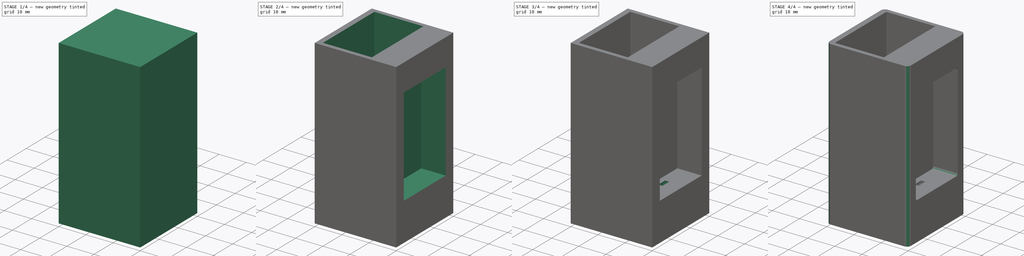
[diagram: build sequence overview — one tinted view per stage of 4, left to right]
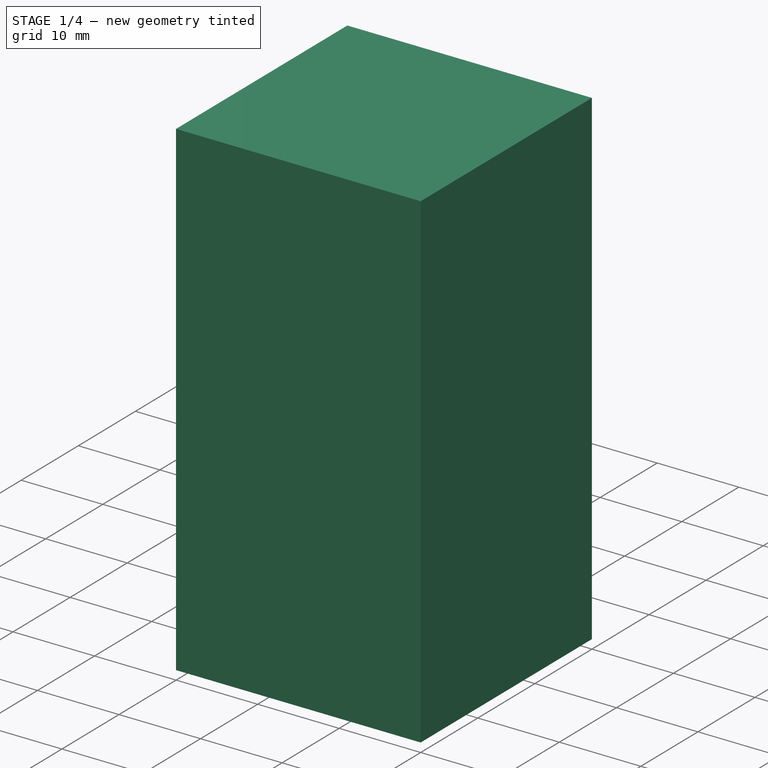
[diagram: stage 1 of 4 — iso view after this stage's code; geometry added in this stage tinted green]
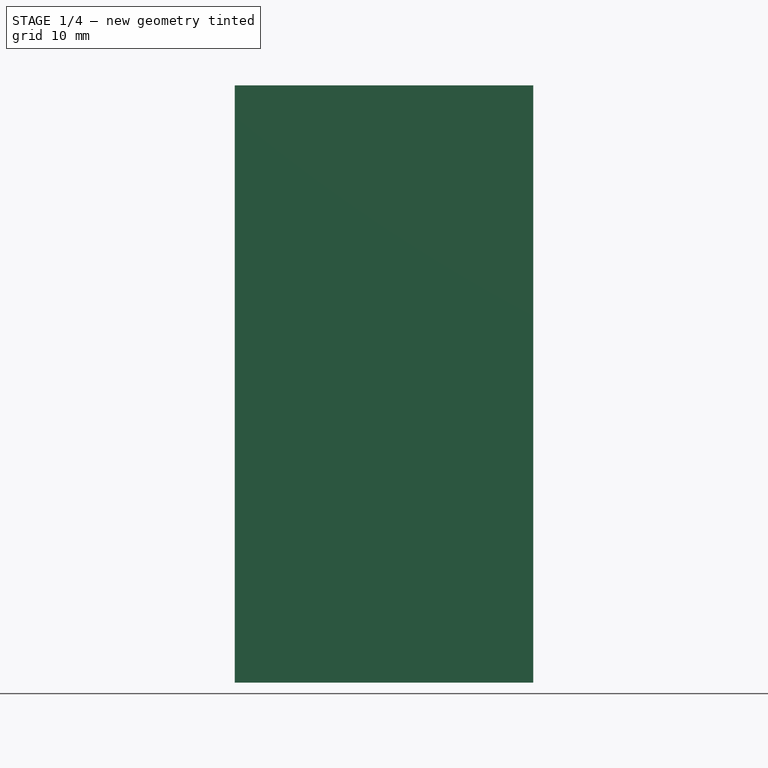
[diagram: stage 1 of 4 — front view after this stage's code; geometry added in this stage tinted green]
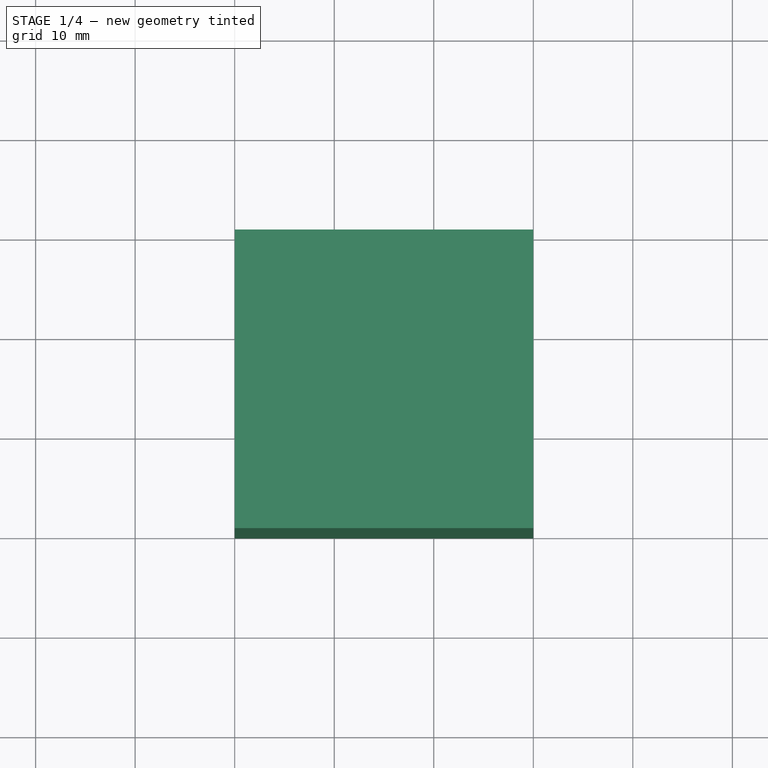
[diagram: stage 1 of 4 — top view after this stage's code; geometry added in this stage tinted green]
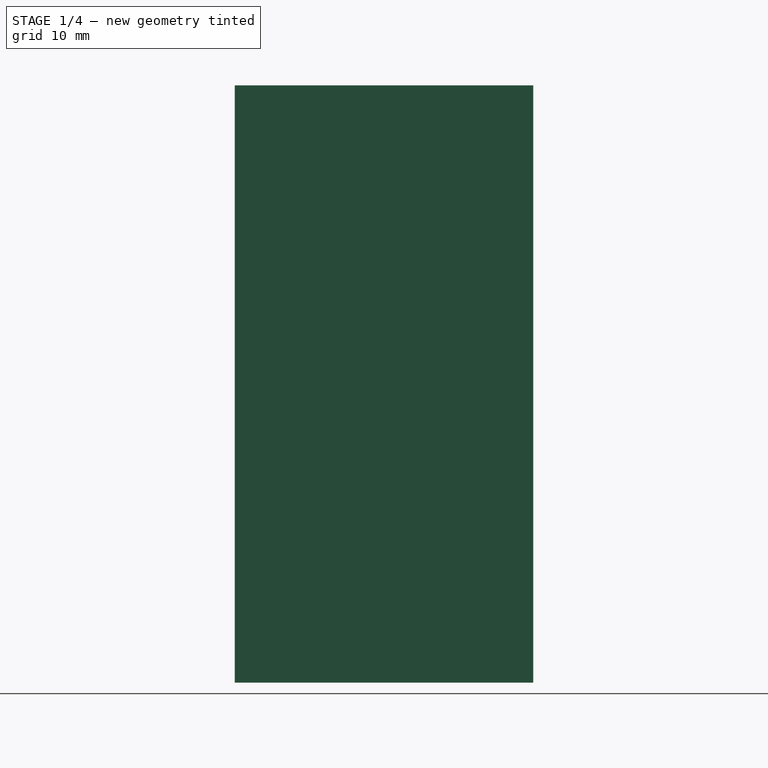
[diagram: stage 1 of 4 — right view after this stage's code; geometry added in this stage tinted green]
FCSTD DOCUMENT  (FreeCAD 0.17R13541 (Git))
Label: Laser
License: All rights reserved
LicenseURL: http://en.wikipedia.org/wiki/All_rights_reserved
objects: Sketcher::SketchObject×5, PartDesign::Pocket×5, PartDesign::Fillet×2, Part::Box×1, PartDesign::FeatureBase×1, PartDesign::Body×1
note: 20 computed .brp shape members not serialized (recipe doc carries the construction recipe); baked Part::Feature solids carry a one-line shape summary decoded from their .brp

FEATURE [Part::Box] Box  label="StartingCube"
  AttacherType = Attacher::AttachEngine3D
  Height = 60
  Length = 30
  Width = 30
FEATURE [PartDesign::FeatureBase] BaseFeature
  BaseFeature = -> Box
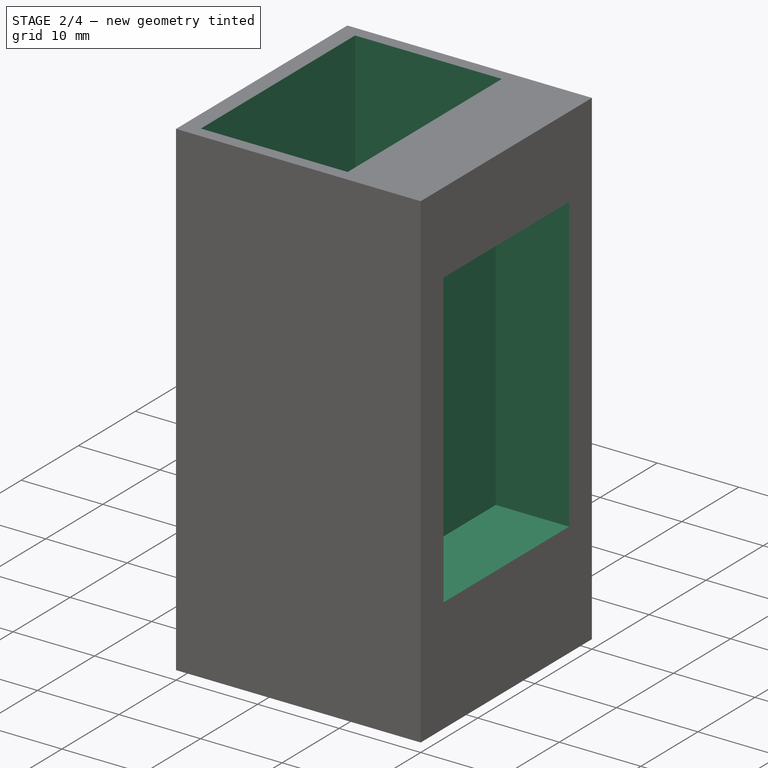
[diagram: stage 2 of 4 — iso view after this stage's code; geometry added in this stage tinted green]
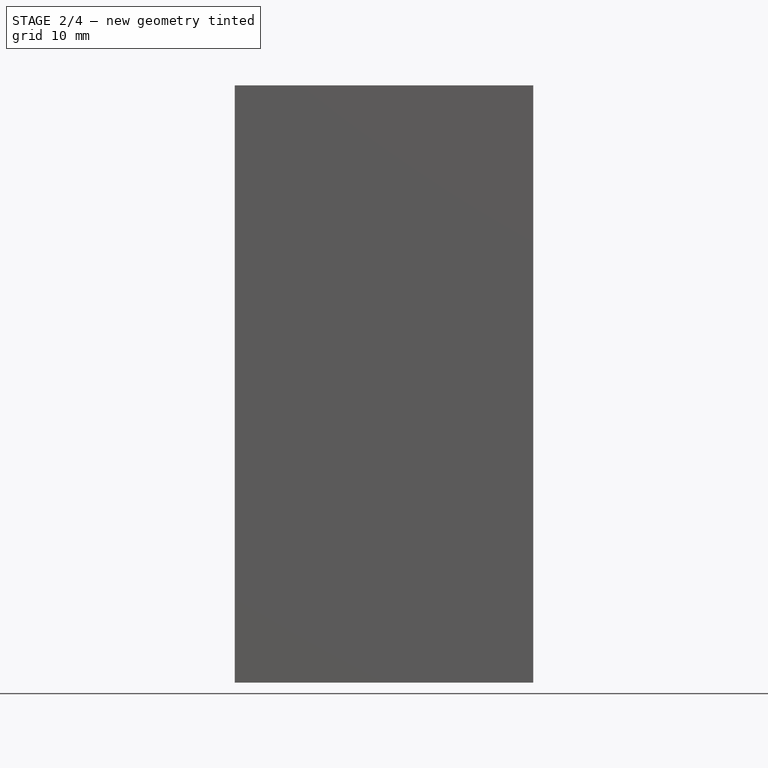
[diagram: stage 2 of 4 — front view after this stage's code; geometry added in this stage tinted green]
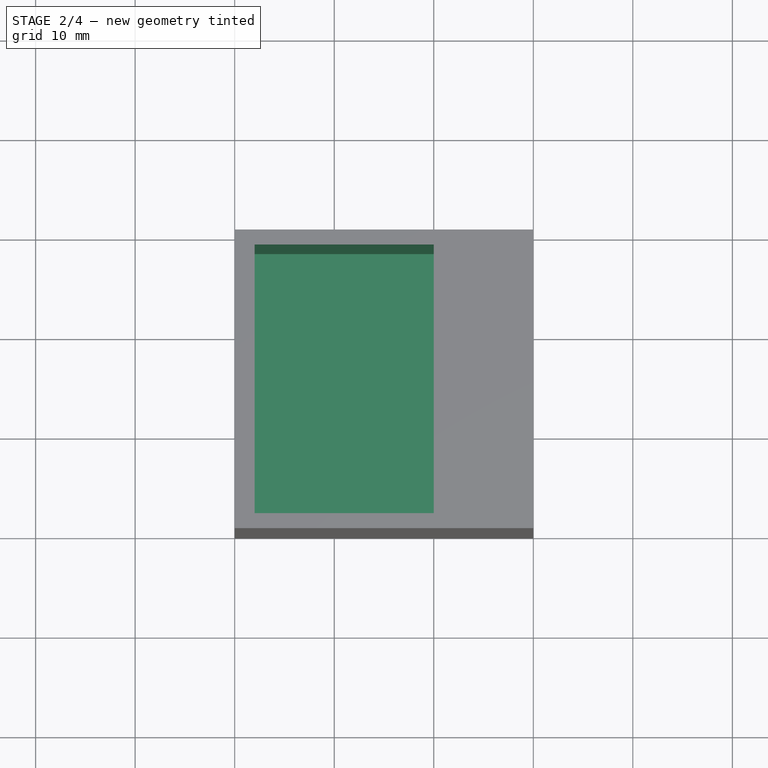
[diagram: stage 2 of 4 — top view after this stage's code; geometry added in this stage tinted green]
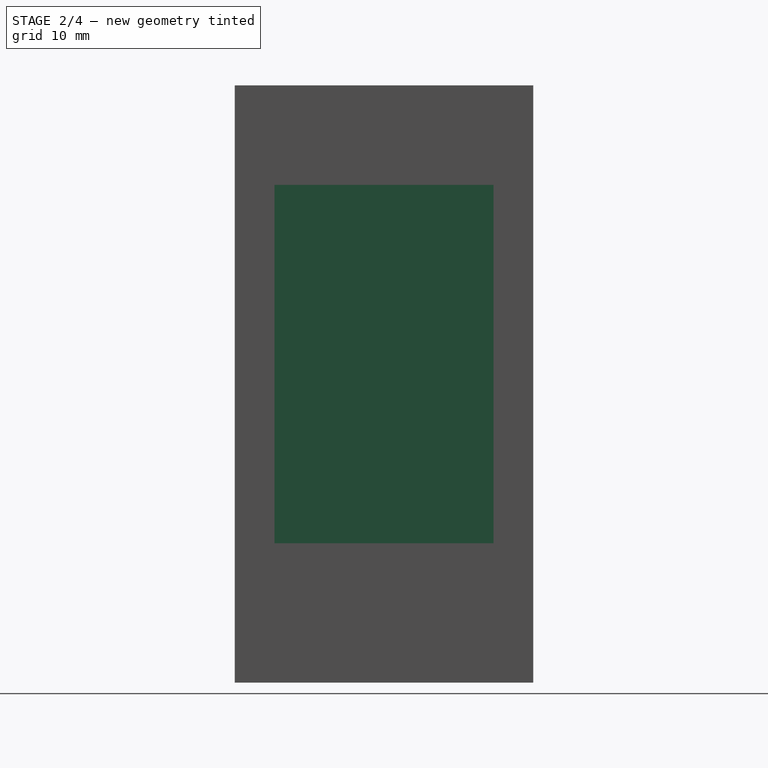
[diagram: stage 2 of 4 — right view after this stage's code; geometry added in this stage tinted green]
FEATURE [Sketcher::SketchObject] Sketch  label="Battery Hole"
  ExternalGeometry = -> [BaseFeature]
  MapMode = 5
  Placement = pos=(0,0,60) rot=(0,0,1;0rad)
  Support = -> [BaseFeature]
  sketch-geometry (6):
    g0: LineSegment StartX=2 StartY=28.5 StartZ=0 EndX=20 EndY=28.5 EndZ=0
    g1: LineSegment StartX=20 StartY=28.5 StartZ=0 EndX=20 EndY=1.5 EndZ=0
    g2: LineSegment StartX=20 StartY=1.5 StartZ=0 EndX=2 EndY=1.5 EndZ=0
    g3: LineSegment StartX=2 StartY=1.5 StartZ=0 EndX=2 EndY=28.5 EndZ=0
    g4: GeomPoint X=0 Y=15 Z=0
    g5: GeomPoint X=2 Y=15 Z=0
  constraints (16):
    c: Coincident(g0,g1)
    c: Coincident(g1,g2)
    c: Coincident(g2,g3)
    c: Coincident(g3,g0)
    c: Horizontal(g0)
    c: Horizontal(g2)
    c: Vertical(g1)
    c: Vertical(g3)
    c: DistanceX(g2,g2) = 18
    c: DistanceY(g1,g1) = 27
    c: PointOnObject(g4,g-3)
    c: Symmetric(g-3,g-1,g4)
    c: PointOnObject(g5,g3)
    c: Symmetric(g0,g2,g5)
    c: Horizontal(g4,g5)
    c: Distance(g4,g5) = 2
FEATURE [PartDesign::Pocket] Pocket  label="BatteryHolePocket"
  BaseFeature = -> BaseFeature
  Length = 56
  Length2 = 100
  Profile = -> Sketch
  Type = 0
FEATURE [Sketcher::SketchObject] Sketch001  label="Regulator Hole"
  ExternalGeometry = -> [Pocket]
  MapMode = 5
  Placement = pos=(30,0,0) rot=(0.57735,0.57735,0.57735;2.0944rad)
  Support = -> [Pocket]
  sketch-geometry (8):
    g0: LineSegment StartX=26 StartY=50 StartZ=0 EndX=4 EndY=50 EndZ=0
    g1: LineSegment StartX=4 StartY=50 StartZ=0 EndX=4 EndY=14 EndZ=0
    g2: LineSegment StartX=4 StartY=14 StartZ=0 EndX=26 EndY=14 EndZ=0
    g3: LineSegment StartX=26 StartY=14 StartZ=0 EndX=26 EndY=50 EndZ=0
    g4: GeomPoint X=15 Y=60 Z=0
    g5: GeomPoint X=15 Y=50 Z=0
    g6: GeomPoint X=15 Y=0 Z=0
    g7: GeomPoint X=15 Y=14 Z=0
  constraints (19):
    c: Coincident(g0,g1)
    c: Coincident(g1,g2)
    c: Coincident(g2,g3)
    c: Coincident(g3,g0)
    c: Horizontal(g0)
    c: Horizontal(g2)
    c: Vertical(g1)
    c: Vertical(g3)
    c: PointOnObject(g4,g-5)
    c: Symmetric(g-5,g-5,g4)
    c: Symmetric(g0,g0,g5)
    c: Vertical(g4,g5)
    c: PointOnObject(g6,g-1)
    c: PointOnObject(g7,g2)
    c: Symmetric(g2,g1,g7)
    c: Symmetric(g-4,g-1,g6)
    c: Distance(g7,g6) = 14
    c: Distance(g5,g4) = 10
    c: Distance(g0) = 22
FEATURE [PartDesign::Pocket] Pocket001  label="RegulatorHolePocket"
  BaseFeature = -> Pocket
  Length = 9
  Length2 = 100
  Profile = -> Sketch001
  Type = 0
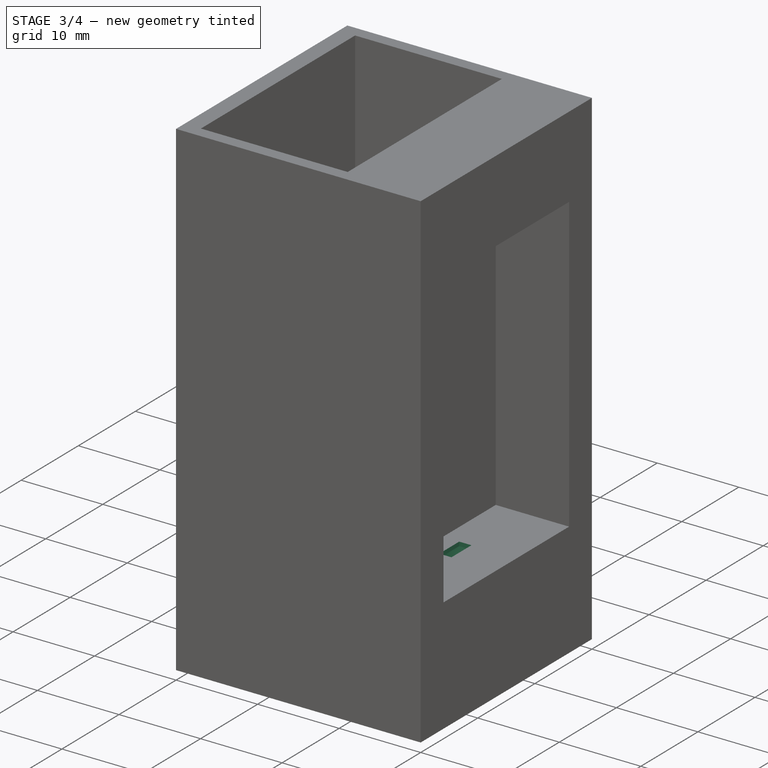
[diagram: stage 3 of 4 — iso view after this stage's code; geometry added in this stage tinted green]
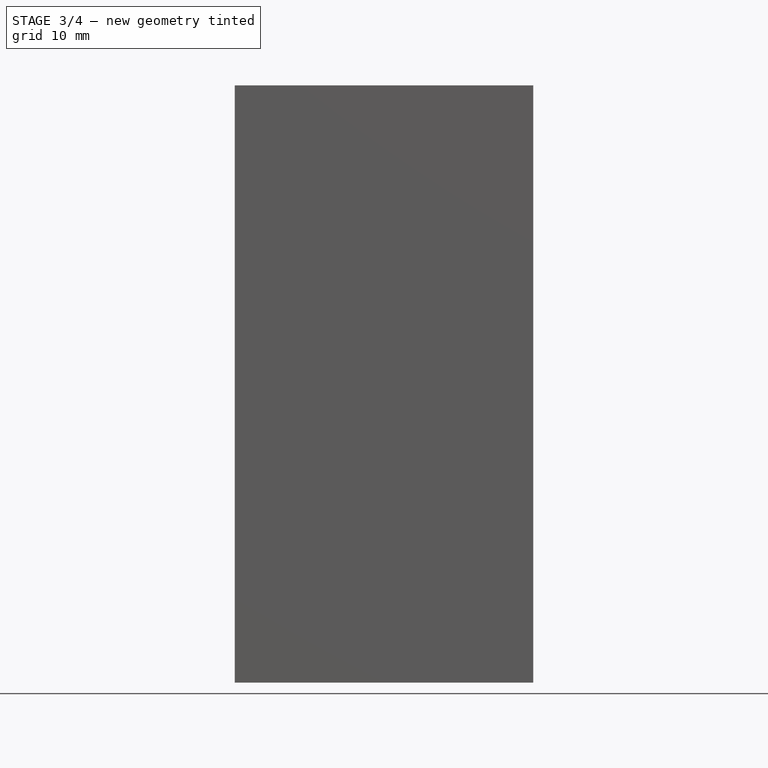
[diagram: stage 3 of 4 — front view after this stage's code; geometry added in this stage tinted green]
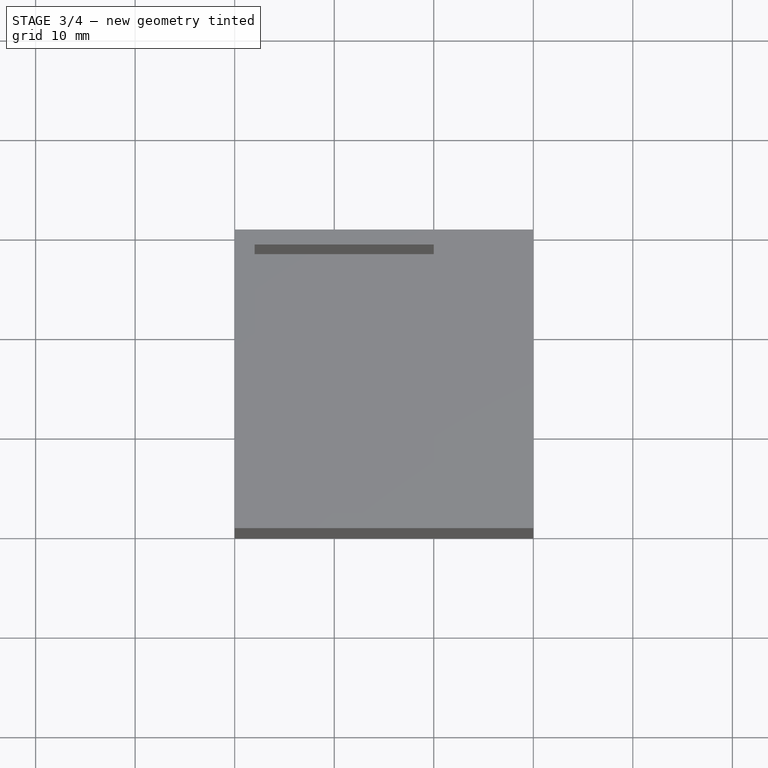
[diagram: stage 3 of 4 — top view after this stage's code; geometry added in this stage tinted green]
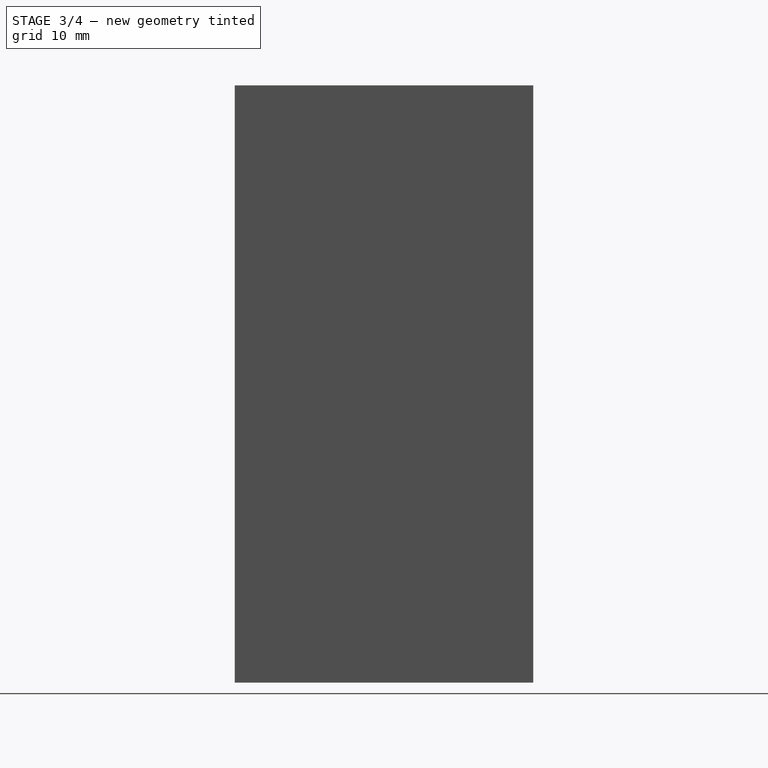
[diagram: stage 3 of 4 — right view after this stage's code; geometry added in this stage tinted green]
FEATURE [Sketcher::SketchObject] Sketch003  label="Laser Diode"
  ExternalGeometry = -> [Pocket001]
  MapMode = 5
  Placement = pos=(0,0,0) rot=(1,0,0;3.14159rad)
  Support = -> [Pocket001]
  sketch-geometry (4):
    g0: Circle CenterX=25.5 CenterY=-15 CenterZ=0 NormalX=0 NormalY=0 NormalZ=1 AngleXU=0 Radius=3.5
    g1: GeomPoint X=30 Y=-15 Z=0
    g2: LineSegment [constr] StartX=30 StartY=0 StartZ=0 EndX=21 EndY=0 EndZ=0
    g3: GeomPoint X=25.5 Y=0 Z=0
  constraints (10):
    c: Radius(g0) = 3.5
    c: PointOnObject(g1,g-3)
    c: Symmetric(g-4,g-3,g1)
    c: Horizontal(g1,g0)
    c: Coincident(g2,g-4)
    c: PointOnObject(g2,g-4)
    c: Distance(g2) = 9
    c: PointOnObject(g3,g2)
    c: Symmetric(g2,g2,g3)
    c: Vertical(g0,g3)
FEATURE [PartDesign::Pocket] Pocket002  label="LaserDiodePocket"
  BaseFeature = -> Pocket001
  Length = 13.5
  Length2 = 100
  Profile = -> Sketch003
  Type = 0
FEATURE [Sketcher::SketchObject] Sketch004  label="Laser Cable"
  ExternalGeometry = -> [Pocket002]
  MapMode = 5
  Placement = pos=(0,0,13.5) rot=(1,0,0;3.14159rad)
  Support = -> [Pocket002]
  sketch-geometry (7):
    g0: LineSegment StartX=23 StartY=-13.25 StartZ=0 EndX=24.5 EndY=-13.25 EndZ=0
    g1: LineSegment StartX=24.5 StartY=-13.25 StartZ=0 EndX=24.5 EndY=-16.75 EndZ=0
    g2: LineSegment StartX=24.5 StartY=-16.75 StartZ=0 EndX=23 EndY=-16.75 EndZ=0
    g3: LineSegment StartX=23 StartY=-16.75 StartZ=0 EndX=23 EndY=-13.25 EndZ=0
    g4: LineSegment [constr] StartX=25.5 StartY=-15 StartZ=0 EndX=22 EndY=-15 EndZ=0
    g5: GeomPoint X=24.5 Y=-15 Z=0
    g6: GeomPoint X=23.75 Y=-15 Z=0
  constraints (17):
    c: Coincident(g0,g1)
    c: Coincident(g1,g2)
    c: Coincident(g2,g3)
    c: Coincident(g3,g0)
    c: Horizontal(g0)
    c: Horizontal(g2)
    c: Vertical(g1)
    c: Vertical(g3)
    c: Distance(g2) = 1.5
    c: Distance(g1) = 3.5
    c: Coincident(g4,g-3)
    c: PointOnObject(g4,g-3)
    c: Horizontal(g4)
    c: Symmetric(g0,g1,g5)
    c: PointOnObject(g5,g4)
    c: Symmetric(g0,g1,g6)
    c: Symmetric(g4,g4,g6)
FEATURE [PartDesign::Pocket] Pocket003  label="LaserCablePocket"
  BaseFeature = -> Pocket002
  Length = 1
  Length2 = 100
  Profile = -> Sketch004
  Type = 0
FEATURE [Sketcher::SketchObject] Sketch005  label="Battery Wire"
  ExternalGeometry = -> [Pocket003]
  MapMode = 5
  Placement = pos=(21,0,0) rot=(0.57735,0.57735,0.57735;2.0944rad)
  Support = -> [Pocket003]
  sketch-geometry (6):
    g0: LineSegment StartX=16.5 StartY=48 StartZ=0 EndX=13.5 EndY=48 EndZ=0
    g1: LineSegment StartX=13.5 StartY=48 StartZ=0 EndX=13.5 EndY=46.5 EndZ=0
    g2: LineSegment StartX=13.5 StartY=46.5 StartZ=0 EndX=16.5 EndY=46.5 EndZ=0
    g3: LineSegment StartX=16.5 StartY=46.5 StartZ=0 EndX=16.5 EndY=48 EndZ=0
    g4: GeomPoint X=15 Y=48 Z=0
    g5: GeomPoint X=15 Y=50 Z=0
  constraints (15):
    c: Coincident(g0,g1)
    c: Coincident(g1,g2)
    c: Coincident(g2,g3)
    c: Coincident(g3,g0)
    c: Horizontal(g0)
    c: Horizontal(g2)
    c: Vertical(g1)
    c: Vertical(g3)
    c: Distance(g2) = 3
    c: DistanceY(g3,g3) = 1.5
    c: PointOnObject(g4,g0)
    c: Symmetric(g0,g0,g4)
    c: Symmetric(g-3,g-3,g5)
    c: Vertical(g4,g5)
    c: Distance(g5,g4) = 2
FEATURE [PartDesign::Pocket] Pocket004  label="BatteryWirePocket"
  BaseFeature = -> Pocket003
  Length = 1
  Length2 = 100
  Profile = -> Sketch005
  Type = 0
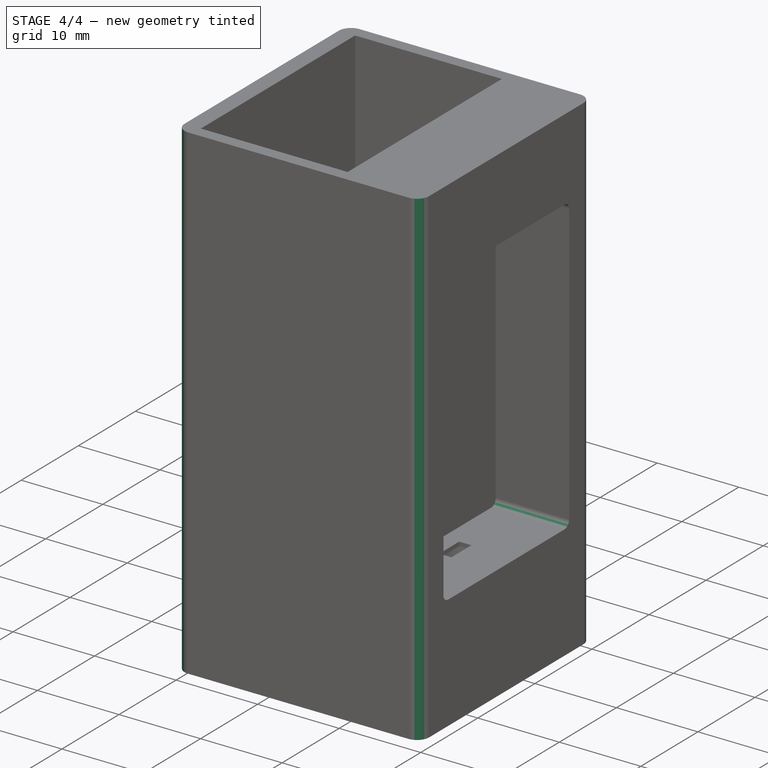
[diagram: stage 4 of 4 — iso view after this stage's code; geometry added in this stage tinted green]
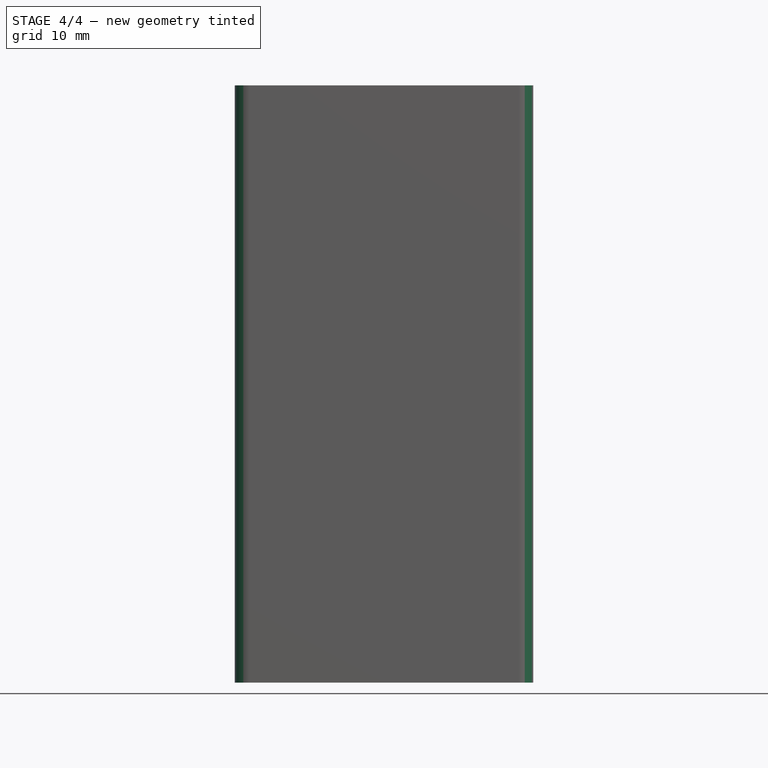
[diagram: stage 4 of 4 — front view after this stage's code; geometry added in this stage tinted green]
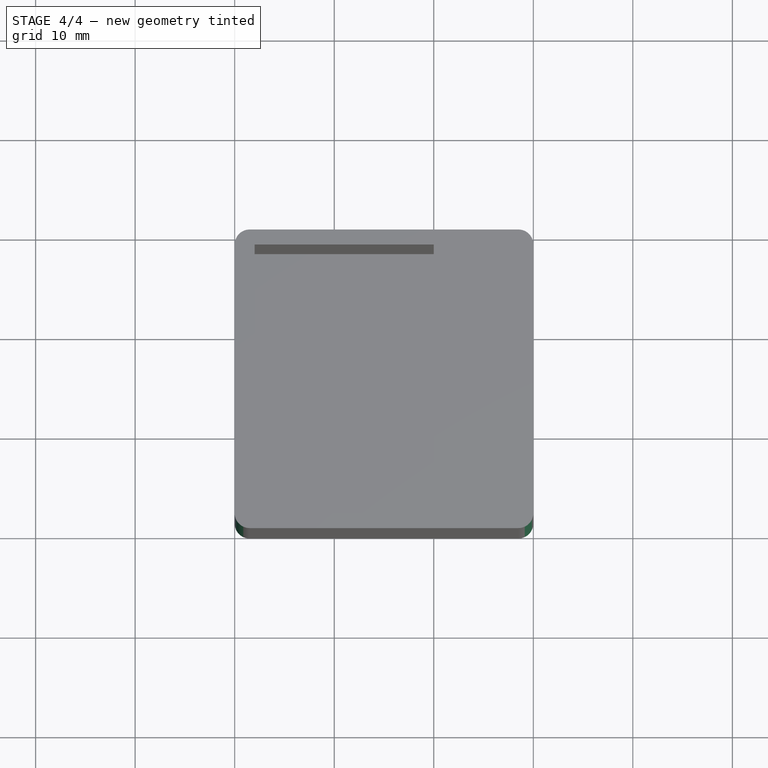
[diagram: stage 4 of 4 — top view after this stage's code; geometry added in this stage tinted green]
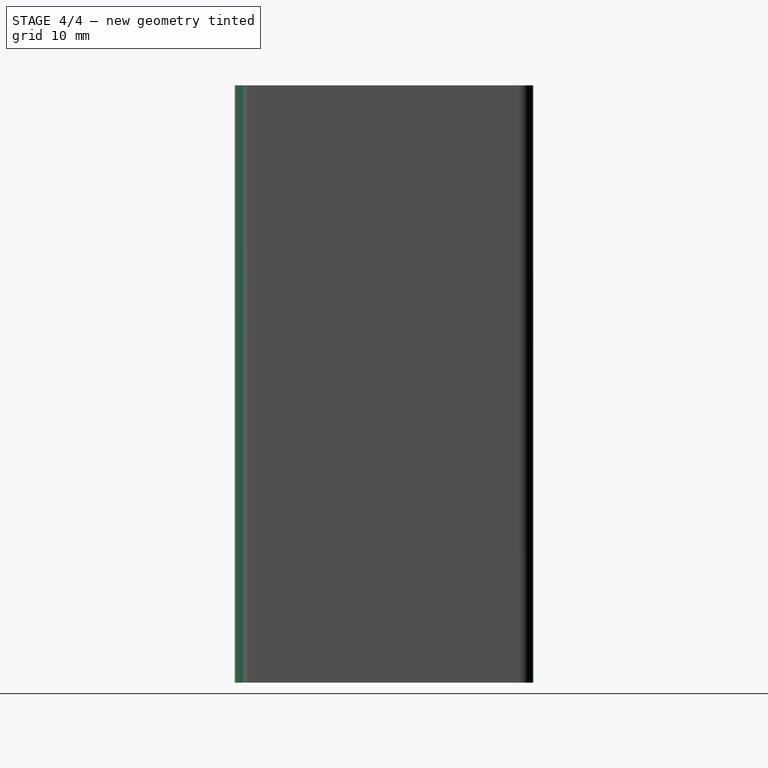
[diagram: stage 4 of 4 — right view after this stage's code; geometry added in this stage tinted green]
FEATURE [PartDesign::Fillet] Fillet  label="MainEdgesFillet"
  Base = -> Pocket004 [Edge6,Edge15,Edge1,Edge3]
  BaseFeature = -> Pocket004
  Radius = 1.5
FEATURE [PartDesign::Fillet] Fillet001  label="InternalEdgesFillet"
  Base = -> Fillet [Edge48,Edge54,Edge51,Edge49]
  BaseFeature = -> Fillet
  Radius = 0.8
FEATURE [PartDesign::Body] Body  label="StartingBody"
  BaseFeature = -> Box
  Group = -> [BaseFeature,Sketch,Pocket,Sketch001,Pocket001,Sketch003,Pocket002,Sketch004,Pocket003,Sketch005,Pocket004,Fillet,Fillet001]
  Origin = -> Origin
  Tip = -> Fillet001
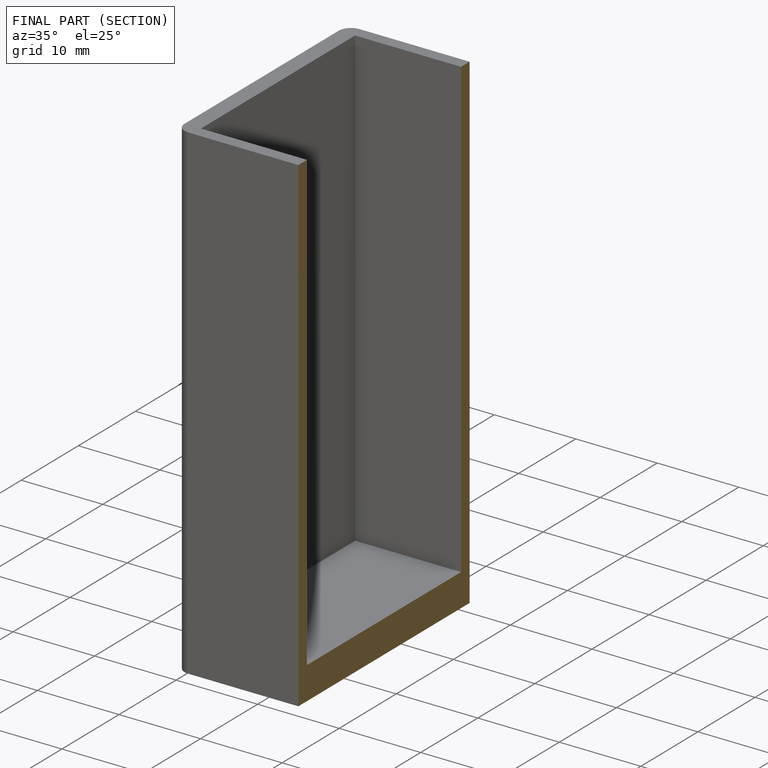
[diagram: finished part — half-section view (interior)]
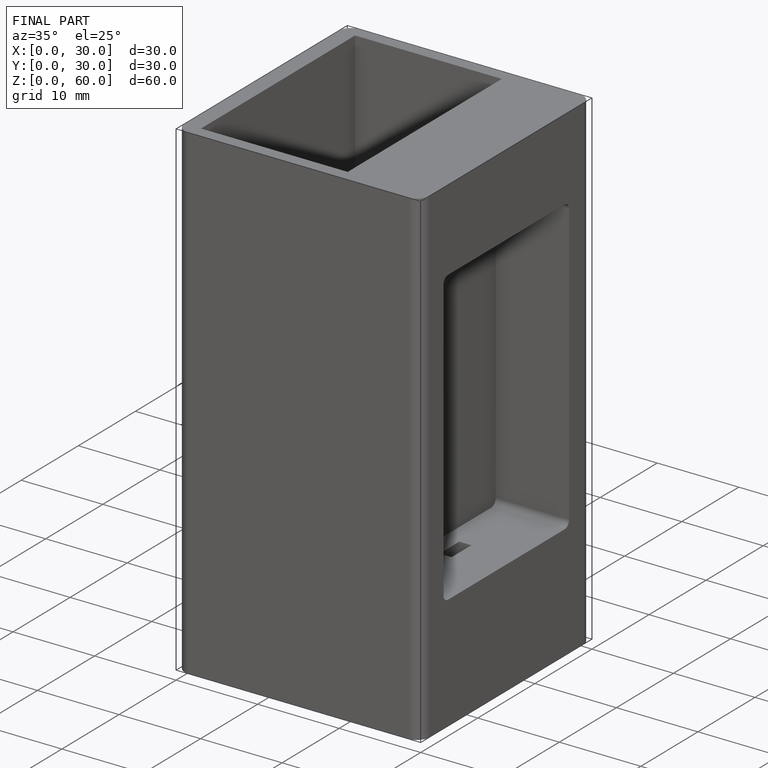
[diagram: finished part — iso view with bounding-box wireframe]
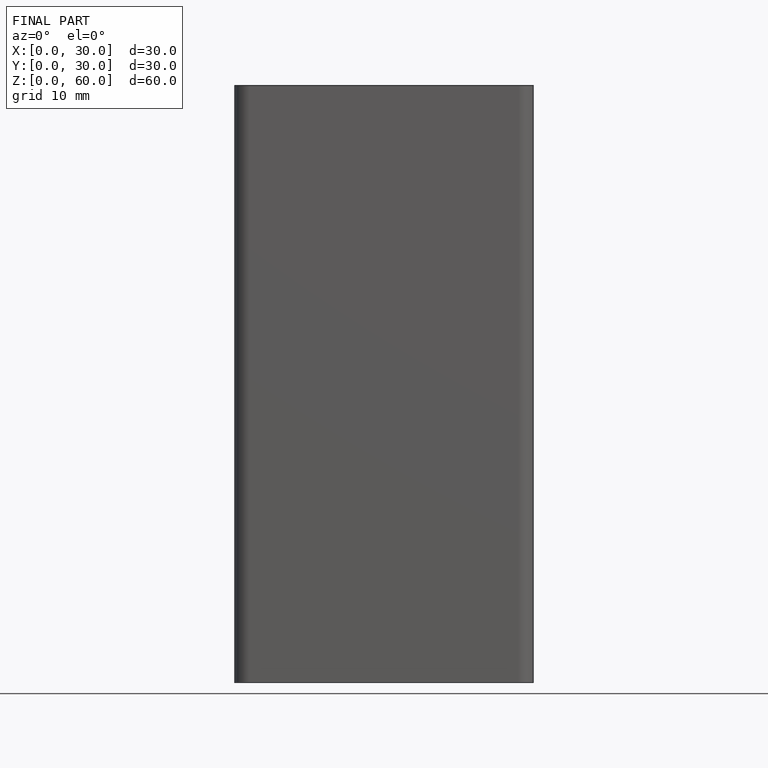
[diagram: finished part — front view with bounding-box wireframe]
